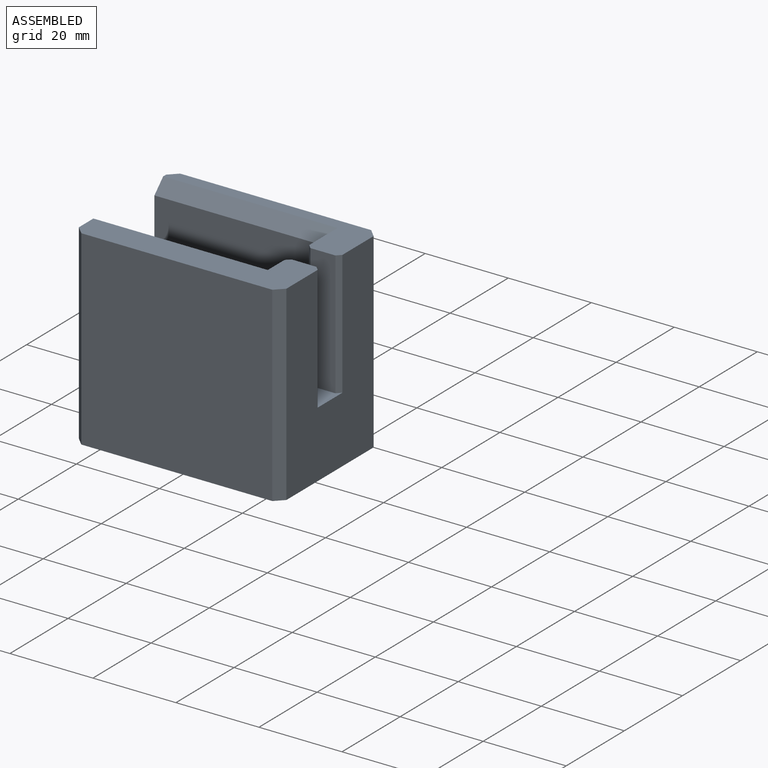
[diagram: assembled view]
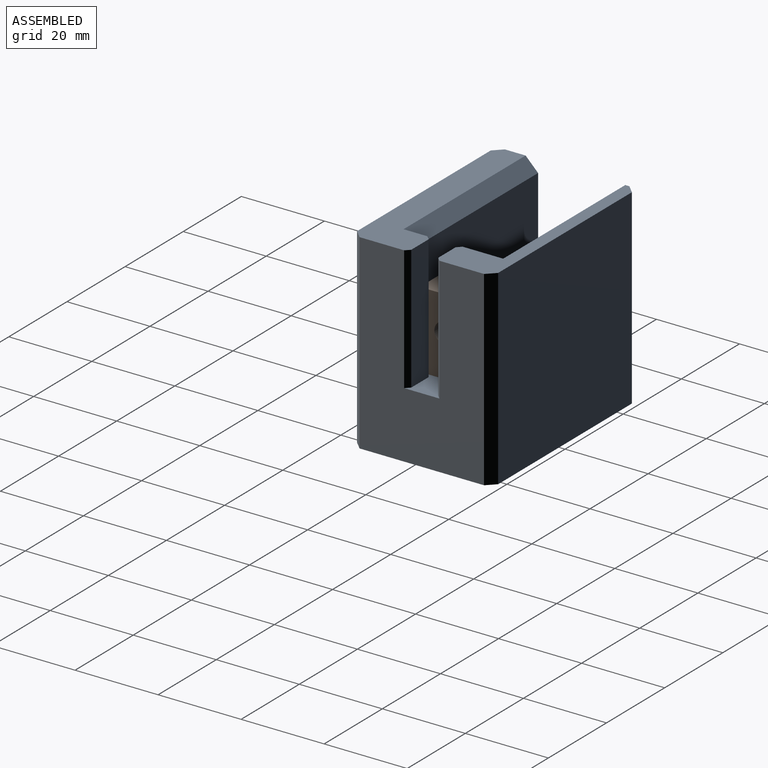
[diagram: assembled view, second angle]
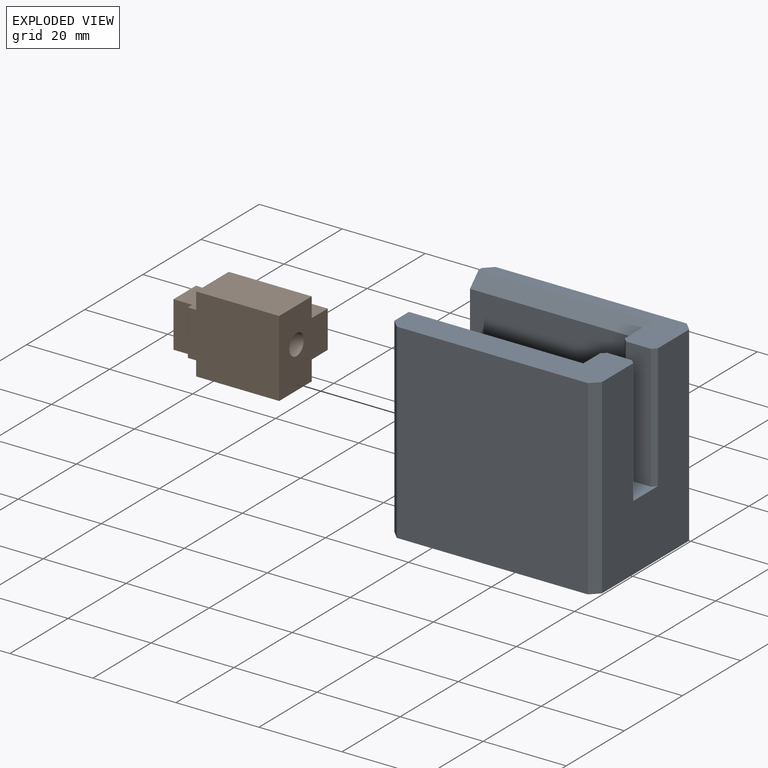
[diagram: exploded view]
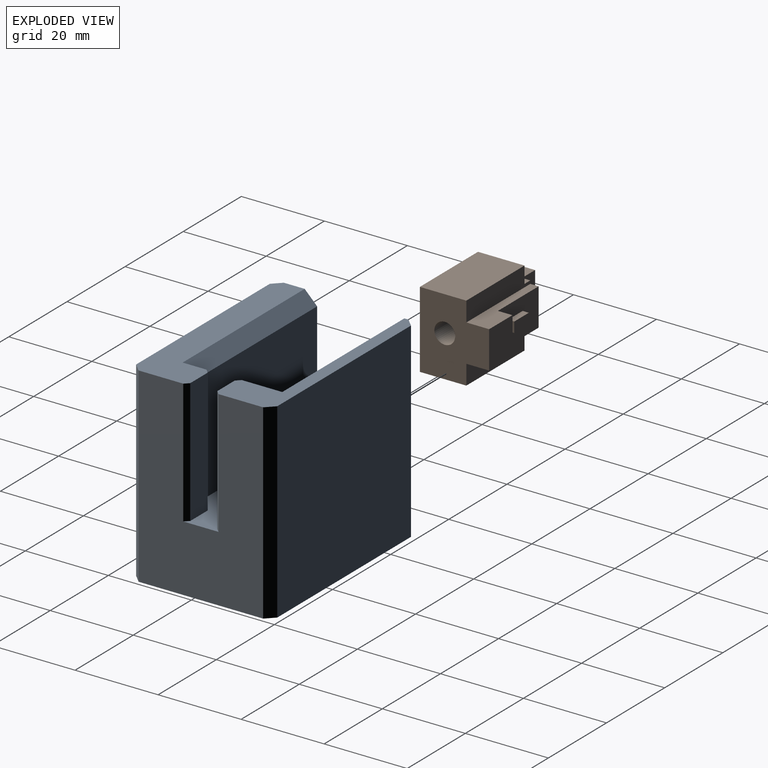
[diagram: exploded view, second angle]
ASSEMBLY  parts=2 mates=2
PART A: 26 faces, bbox 50x34x46 mm
  f0: plane 30x5.75mm, normal (-1,0,0), area 87mm2, adj f1,f6,f14,f17,f24
  f1: plane 50x18mm, normal (0,0,1), area 810mm2, adj f0,f3,f4,f7,f10,f11,f14,f15
  f2: plane 50x13.75mm, normal (0,0,1), area 231mm2, adj f3,f4,f7,f9,f10,f16,f18,f20
  f3: plane 46x30mm, normal (1,0,0), area 1125mm2, adj f1,f2,f5,f6,f20,f21,f22,f23
  f4: plane 46x30mm, normal (-1,0,0), area 792.5mm2, adj f1,f2,f5,f6,f12,f14,f15,f16
  f5: plane 50x34mm, normal (0,0,-1), area 1692mm2, adj f3,f4,f8,f9,f18,f19,f20,f21
  f6: plane 50x13.75mm, normal (0,0,1), area 399mm2, adj f0,f3,f4,f8,f11,f17,f19,f21
  f7: plane 30x9.75mm, normal (-1,0,0), area 207mm2, adj f1,f2,f15,f16,f25
  f8: plane 46x46mm, normal (0,-1,0), area 2116mm2, adj f5,f6,f19,f21
  f9: plane 46x46mm, normal (0,1,0), area 2116mm2, adj f2,f5,f18,f20
  f10: plane 30x6mm, normal (0,-1,0), area 180mm2, adj f1,f2,f23,f25
  f11: plane 30x6mm, normal (0,1,0), area 180mm2, adj f1,f6,f22,f24
  f12: cylinder r=3.5mm len=7mm, axis (-1,0,0), area 131.9mm2, adj f4,f13
  f13: plane 7x7mm, normal (-1,0,0), area 38.5mm2, adj f12
  f14: plane 42x27mm, normal (0,1,0), area 1134mm2, adj f0,f1,f4,f17
  f15: plane 42x27mm, normal (0,-1,0), area 1134mm2, adj f1,f4,f7,f16
  f16: plane 42x3mm, normal (0,-0.71,0.71), area 178.2mm2, adj f2,f4,f7,f15
  f17: plane 42x3mm, normal (0,0.71,0.71), area 178.2mm2, adj f0,f4,f6,f14
  f18: plane 46x2mm, normal (-0.71,0.71,0), area 130.1mm2, adj f2,f4,f5,f9
  f19: plane 46x2mm, normal (-0.71,-0.71,0), area 130.1mm2, adj f4,f5,f6,f8
  f20: plane 46x2mm, normal (0.71,0.71,0), area 130.1mm2, adj f2,f3,f5,f9
  f21: plane 46x2mm, normal (0.71,-0.71,0), area 130.1mm2, adj f3,f5,f6,f8
  f22: plane 30x1mm, normal (0.71,0.71,0), area 42.4mm2, adj f1,f3,f6,f11
  f23: plane 30x1mm, normal (0.71,-0.71,0), area 42.4mm2, adj f1,f2,f3,f10
  f24: plane 30x1mm, normal (-0.71,0.71,0), area 42.4mm2, adj f0,f1,f6,f11
  f25: plane 30x1mm, normal (-0.71,-0.71,0), area 42.4mm2, adj f1,f2,f7,f10
PART B: 26 faces, bbox 16.7x26.5x18.5 mm
  f0: plane 18.5x16.7mm, normal (0,-1,0), area 237.1mm2, adj f1,f8,f12,f13,f21,f22,f23,f24
  f1: plane 9x8mm, normal (1,0,0), area 72mm2, adj f0,f6,f23,f24
  f2: plane 14x9mm, normal (1,0,0), area 113.5mm2, adj f3,f6,f14,f15,f16,f17,f23,f24
  f3: plane 11x4mm, normal (0,1,0), area 40mm2, adj f2,f5,f11,f20,f22,f23,f24,f25
  f4: plane 11.2x4mm, normal (0,1,0), area 44.8mm2, adj f5,f8,f12,f22
  f5: plane 11.2x6.5mm, normal (0,0,1), area 57.1mm2, adj f3,f4,f7,f8,f9,f10,f11,f22
  f6: plane 9x3.5mm, normal (0,1,0), area 31.5mm2, adj f1,f2,f23,f24
  f7: plane 11x7.7mm, normal (0,1,0), area 65.1mm2, adj f5,f9,f11,f20,f21
  f8: plane 22x18.5mm, normal (-1,0,0), area 392mm2, adj f0,f4,f5,f10,f12,f13,f19,f20
  f9: plane 11x4.5mm, normal (-1,0,0), area 49.5mm2, adj f5,f7,f10,f20
  f10: plane 11x1.5mm, normal (0,1,0), area 16.5mm2, adj f5,f8,f9,f20
  f11: plane 11x4.5mm, normal (1,0,0), area 49.5mm2, adj f3,f5,f7,f20
  f12: plane 20x11.2mm, normal (0,0,1), area 224mm2, adj f0,f4,f8,f22
  f13: plane 20x11.2mm, normal (0,0,-1), area 224mm2, adj f0,f8,f19,f25
  f14: plane 5x1.5mm, normal (0,0,-1), area 7.5mm2, adj f2,f15,f17,f18
  f15: plane 2.5x1.5mm, normal (0,1,0), area 3.7mm2, adj f2,f14,f16,f18
  f16: plane 5x1.5mm, normal (0,0,1), area 7.5mm2, adj f2,f15,f17,f18
  f17: plane 2.5x1.5mm, normal (0,-1,0), area 3.7mm2, adj f2,f14,f16,f18
  f18: plane 5x2.5mm, normal (1,0,0), area 12.5mm2, adj f14,f15,f16,f17
  f19: plane 11.2x3.5mm, normal (0,1,0), area 39.2mm2, adj f8,f13,f20,f25
  f20: plane 11.2x6.5mm, normal (0,0,-1), area 57.1mm2, adj f3,f7,f8,f9,f10,f11,f19,f25
  f21: cylinder r=2.5mm len=26.5mm, axis (0,-1,0), area 416.3mm2, adj f0,f7
  f22: plane 22x4.75mm, normal (1,0,0), area 96.5mm2, adj f0,f3,f4,f5,f12,f23
  f23: plane 22x5.5mm, normal (0,0,1), area 72mm2, adj f0,f1,f2,f3,f6,f22
  f24: plane 22x5.5mm, normal (0,0,-1), area 72mm2, adj f0,f1,f2,f3,f6,f25
  f25: plane 22x4.75mm, normal (1,0,0), area 97.5mm2, adj f0,f3,f13,f19,f20,f24
PLACE A at identity fixed
PLACE B rot(axis=(0,0,1),90deg) t=(-9.5,-16.47,17.25)mm
MATE parallel B.f0 <-> A.f0  axis (1,0,0) through (17,-15.76,17.19)mm
MATE parallel B.f13 <-> A.f1  axis (0,0,-1) through (7,-23.07,8)mm
